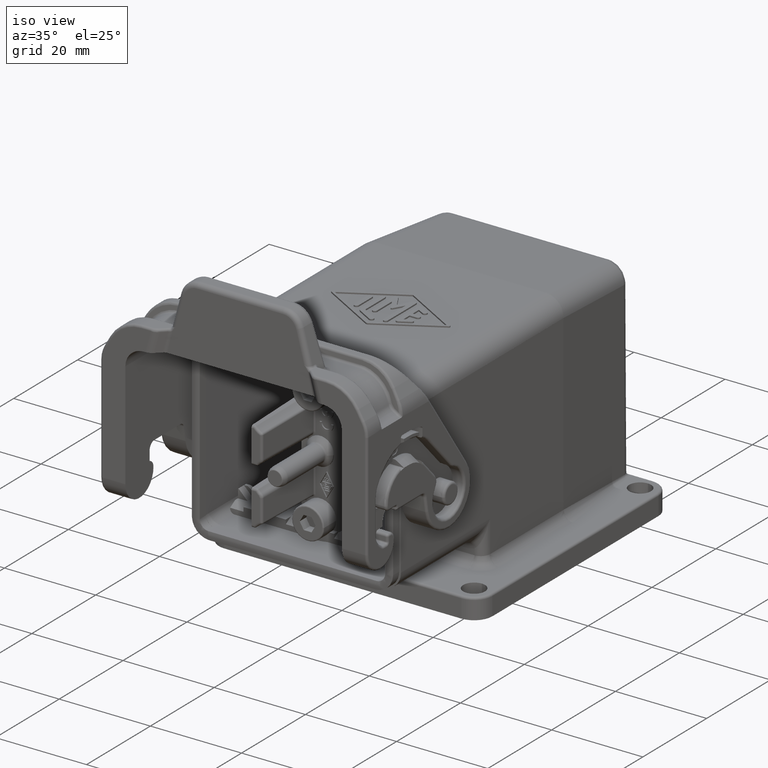
[diagram: clean part render]
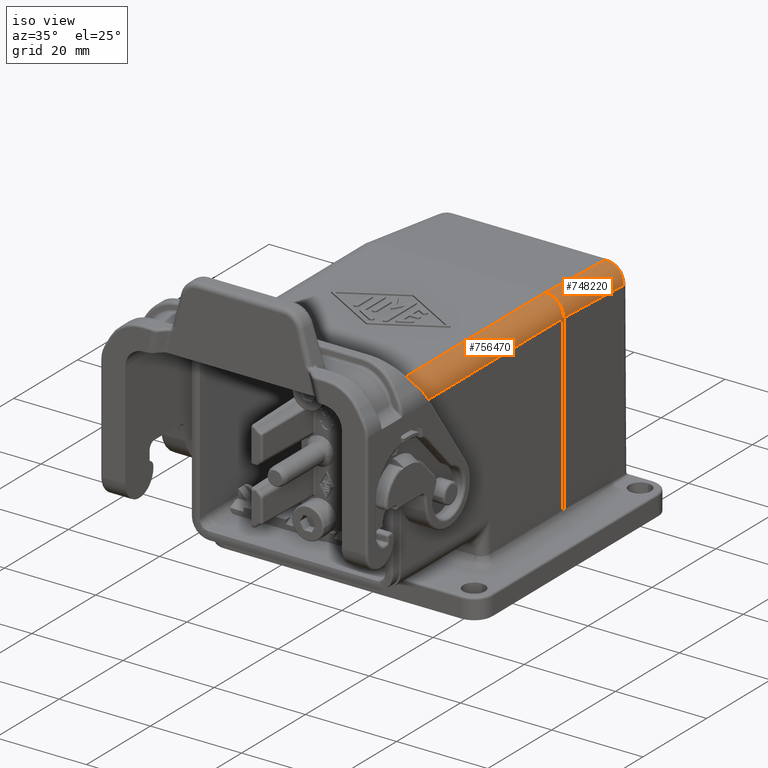
[diagram: same view with one multi-face feature highlighted, each face labeled with its STEP entity id]
A machine part, iso view. The highlighted faces form ONE feature: a constant-radius fillet chain: 2 tangent blend faces with common blend radius 4 mm. The faces share edges in the B-rep.
Their STEP definitions:
[1] entity #756470 (Cylinder):
#101020=CARTESIAN_POINT('',(55.8316053545882,74.4545149999975,105.9));
#101030=VERTEX_POINT('',#101020);
#101060=CARTESIAN_POINT('',(33.8311485820618,74.4545149999974,105.9));
#101070=DIRECTION('',(-1.,-5.55111512312578E-17,0.));
#101080=VECTOR('',#101070,1.);
#101090=LINE('',#101060,#101080);
#101100=CARTESIAN_POINT('',(106.731605541377,74.4545149999975,105.9));
#101110=VERTEX_POINT('',#101100);
#101120=EDGE_CURVE('',#101110,#101030,#101090,.T.);
#110940=CARTESIAN_POINT('',(55.8313127625493,74.4688253890988,
105.899974401514));
#110950=VERTEX_POINT('',#110940);
#110980=CARTESIAN_POINT('',(10.1113961435428,74.4545149999974,101.9));
#110990=DIRECTION('',(0.0871557427476582,9.6762312326757E-18,
-0.996194698091746));
#111000=DIRECTION('',(-0.996194698091746,-5.48766342722908E-17,
-0.0871557427476582));
#111010=AXIS2_PLACEMENT_3D('',#110980,#110990,#111000);
#111020=ELLIPSE('',#111010,45.8948529826794,4.);
#111030=EDGE_CURVE('',#110950,#101030,#111020,.T.);
#122560=CARTESIAN_POINT('',(106.731605541377,74.4545149999975,101.9));
#122570=DIRECTION('',(1.,5.55111512312578E-17,0.));
#122580=DIRECTION('',(-5.55111512312578E-17,1.,-6.16297582203915E-33));
#122590=AXIS2_PLACEMENT_3D('',#122560,#122570,#122580);
#122600=CIRCLE('',#122590,4.);
#122610=CARTESIAN_POINT('',(106.731605541377,78.4545149999974,101.9));
#122620=VERTEX_POINT('',#122610);
#122630=EDGE_CURVE('',#122620,#101110,#122600,.T.);
#746990=CARTESIAN_POINT('',(33.8311485820618,72.987681084249,
99.9599300898387));
#747000=DIRECTION('',(0.994030621840892,0.0658784203548369,
0.0869664106087028));
#747010=DIRECTION('',(-0.0871557427476581,-9.6762312326757E-18,
0.996194698091746));
#747020=AXIS2_PLACEMENT_3D('',#746990,#747000,#747010);
#747030=CYLINDRICAL_SURFACE('',#747020,4.);
#747090=CARTESIAN_POINT('',(55.831489050349,78.4545072920462,
101.907852614245));
#747100=VERTEX_POINT('',#747090);
#747130=CARTESIAN_POINT('',(33.8311485820618,74.4545149999974,101.9));
#747140=DIRECTION('',(-1.,-5.55111512312578E-17,0.));
#747150=DIRECTION('',(-5.55111512312578E-17,1.,-6.16297582203915E-33));
#747160=AXIS2_PLACEMENT_3D('',#747130,#747140,#747150);
#747170=CYLINDRICAL_SURFACE('',#747160,4.);
#747180=CARTESIAN_POINT('',(55.8314890503353,78.4545072920457,
101.907852614244));
#747190=CARTESIAN_POINT('',(55.8295510393362,78.4543788522367,
101.97327773641));
#747200=CARTESIAN_POINT('',(55.8276081252263,78.452644283066,
102.038690738177));
#747210=CARTESIAN_POINT('',(55.8256765321517,78.4493109915183,
102.103973003426));
#747220=CARTESIAN_POINT('',(55.8237449364493,78.445977695436,
102.169255357486));
#747230=CARTESIAN_POINT('',(55.821824626997,78.441045749831,
102.23440613166));
#747240=CARTESIAN_POINT('',(55.8199286534693,78.4345340618537,
102.299309738499));
#747250=CARTESIAN_POINT('',(55.8180326750497,78.4280223570751,
102.364213512801));
#747260=CARTESIAN_POINT('',(55.8161610150871,78.4199310502056,
102.428869307754));
#747270=CARTESIAN_POINT('',(55.8143242156562,78.4102895762197,
102.493167347478));
#747280=CARTESIAN_POINT('',(55.8124871177286,78.4006465354058,
102.557475836222));
#747290=CARTESIAN_POINT('',(55.8106860972347,78.3894616832956,
102.621381950846));
#747300=CARTESIAN_POINT('',(55.8089261822129,78.3767487609977,
102.684909118351));
#747310=CARTESIAN_POINT('',(55.8071649053967,78.3640260016413,
102.748485442175));
#747320=CARTESIAN_POINT('',(55.8054388538809,78.3497277412044,
102.81189673576));
#747330=CARTESIAN_POINT('',(55.8037563291161,78.3338591858586,
102.875032659774));
#747340=CARTESIAN_POINT('',(55.8020738101642,78.3179906853354,
102.938168365666));
#747350=CARTESIAN_POINT('',(55.8004348312089,78.3005520051145,
103.001027914257));
#747360=CARTESIAN_POINT('',(55.7988467944662,78.2815600890331,
103.063497265355));
#747370=CARTESIAN_POINT('',(55.797258761205,78.2625682145872,
103.125966479503));
#747380=CARTESIAN_POINT('',(55.7957216852239,78.2420232974657,
103.188044685333));
#747390=CARTESIAN_POINT('',(55.7942420845349,78.2199543353478,
103.249617209359));
#747400=CARTESIAN_POINT('',(55.7927624853378,78.1978853954808,
103.311189671304));
#747410=CARTESIAN_POINT('',(55.7913403765799,78.1742926767366,
103.372255639141));
#747420=CARTESIAN_POINT('',(55.789981393235,78.1492169654784,
103.432702641177));
#747430=CARTESIAN_POINT('',(55.7886224097015,78.1241412507411,
103.4931496516));
#747440=CARTESIAN_POINT('',(55.7873265655306,78.0975828761408,
103.552976902271));
#747450=CARTESIAN_POINT('',(55.7860986126874,78.0695935971133,
103.612076732123));
#747460=CARTESIAN_POINT('',(55.7848706582575,78.041604281921,
103.671176638337));
#747470=CARTESIAN_POINT('',(55.7837106069334,78.0121844536131,
103.729548367086));
#747480=CARTESIAN_POINT('',(55.7826223354289,77.9813954681961,
103.787091455929));
#747490=CARTESIAN_POINT('',(55.7815340612094,77.9506064059637,
103.844634688336));
#747500=CARTESIAN_POINT('',(55.780517575646,77.9184486268731,
103.901348580359));
#747510=CARTESIAN_POINT('',(55.7795759026694,77.8849911567501,
103.957142031546));
#747520=CARTESIAN_POINT('',(55.7786341897322,77.8515322668327,
104.012937850373));
#747530=CARTESIAN_POINT('',(55.7777674342832,77.8167800797011,
104.067803475336));
#747540=CARTESIAN_POINT('',(55.7769774697125,77.7807916395085,
104.121684882571));
#747550=CARTESIAN_POINT('',(55.7761870567987,77.7447827741332,
104.175596870114));
#747560=CARTESIAN_POINT('',(55.7754701047512,77.7073794000549,
104.228757416811));
#747570=CARTESIAN_POINT('',(55.7748303277683,77.6686279930909,
104.281066497944));
#747580=CARTESIAN_POINT('',(55.774190553077,77.6298767249252,
104.333375391718));
#747590=CARTESIAN_POINT('',(55.7736279648901,77.5897778292238,
104.384832133245));
#747600=CARTESIAN_POINT('',(55.7731457371696,77.5483901482988,
104.43533756465));
#747610=CARTESIAN_POINT('',(55.7726635105593,77.5070025626537,
104.485842879785));
#747620=CARTESIAN_POINT('',(55.7722616530359,77.4643266795104,
104.535396205374));
#747630=CARTESIAN_POINT('',(55.7719427200509,77.4204328477313,
104.583902256137));
#747640=CARTESIAN_POINT('',(55.7716237874185,77.3765390644775,
104.632408253275));
#747650=CARTESIAN_POINT('',(55.7713877847125,77.3314278895708,
104.679866321846));
#747660=CARTESIAN_POINT('',(55.7712365997327,77.2851798662601,
104.726187611414));
#747670=CARTESIAN_POINT('',(55.7710854147454,77.2389318406569,
104.772508903277));
#747680=CARTESIAN_POINT('',(55.7710190493632,77.1915475792231,
104.817692804204));
#747690=CARTESIAN_POINT('',(55.7710387042274,77.1431160800961,
104.861659033733));
#747700=CARTESIAN_POINT('',(55.7710583591152,77.0946845225204,
104.905625316322));
#747710=CARTESIAN_POINT('',(55.7711640324513,77.045206380791,
104.948373372023));
#747720=CARTESIAN_POINT('',(55.7713562489716,76.9947769460815,
104.989833206709));
#747730=CARTESIAN_POINT('',(55.7715484659552,76.9443473898466,
105.031293141304));
#747740=CARTESIAN_POINT('',(55.7718272205789,76.8929672189151,
105.071464369595));
#747750=CARTESIAN_POINT('',(55.7721924057579,76.8407354236768,
105.110288474517));
#747760=CARTESIAN_POINT('',(55.7725575923638,76.7885034243435,
105.149112731143));
#747770=CARTESIAN_POINT('',(55.773009199873,76.735420533249,
105.186589429334));
#747780=CARTESIAN_POINT('',(55.7735465707145,76.6815862592267,
105.222672660124));
#747790=CARTESIAN_POINT('',(55.7740839705348,76.6277490820826,
105.258757836775));
#747800=CARTESIAN_POINT('',(55.774709638513,76.5729098728808,
105.293617338527));
#747810=CARTESIAN_POINT('',(55.7754248279232,76.5171492382345,
105.327176680484));
#747820=CARTESIAN_POINT('',(55.7761400147001,76.4613888088956,
105.360735898877));
#747830=CARTESIAN_POINT('',(55.7769447186407,76.4047075860722,
105.392994477466));
#747840=CARTESIAN_POINT('',(55.7778396075436,76.3471973791073,
105.423883285781));
#747850=CARTESIAN_POINT('',(55.7787344943039,76.2896873098306,
105.454772020145));
#747860=CARTESIAN_POINT('',(55.7797195574387,76.2313489628974,
105.484290541749));
#747870=CARTESIAN_POINT('',(55.7807948524044,76.1722834180673,
105.512377563584));
#747880=CARTESIAN_POINT('',(55.7818701460875,76.1132179436938,
105.540464551915));
#747890=CARTESIAN_POINT('',(55.7830356587531,76.0534260330813,
105.567119647659));
#747900=CARTESIAN_POINT('',(55.7842908403837,75.9930158567242,
105.592291309452));
#747910=CARTESIAN_POINT('',(55.7855460219679,75.9326056825984,
105.617462970314));
#747920=CARTESIAN_POINT('',(55.786890855586,75.8715780406747,
105.641150863801));
#747930=CARTESIAN_POINT('',(55.7883242262253,75.8100457839105,
105.663314535601));
#747940=CARTESIAN_POINT('',(55.7897575984658,75.7485134584092,
105.68547823216));
#747950=CARTESIAN_POINT('',(55.7912794869577,75.6864773332243,
105.706117440916));
#747960=CARTESIAN_POINT('',(55.7928882869796,75.6240523096731,
105.725203586906));
#747970=CARTESIAN_POINT('',(55.7944970907225,75.5616271417406,
105.74428977704));
#747980=CARTESIAN_POINT('',(55.7961927816994,75.4988138877261,
105.761822712057));
#747990=CARTESIAN_POINT('',(55.7979733783462,75.4357266316719,
105.777785931929));
#748000=CARTESIAN_POINT('',(55.7997539813886,75.3726391490166,
105.79374920914));
#748010=CARTESIAN_POINT('',(55.8016194626733,75.3092784517396,
105.8081426577));
#748020=CARTESIAN_POINT('',(55.8035676186814,75.2457547039274,
105.820961582434));
#748030=CARTESIAN_POINT('',(55.8055147669505,75.1822638155811,
105.833773876215));
#748040=CARTESIAN_POINT('',(55.8075530613391,75.1183299754229,
105.845070205164));
#748050=CARTESIAN_POINT('',(55.8096832194892,75.0540319162058,
105.854817248266));
#748060=CARTESIAN_POINT('',(55.8118133061875,74.989736013741,
105.864563964423));
#748070=CARTESIAN_POINT('',(55.8140349734413,74.9250848840159,
105.872759647323));
#748080=CARTESIAN_POINT('',(55.8163478195425,74.8601890980415,
105.879375393976));
#748090=CARTESIAN_POINT('',(55.818660659909,74.7952934729777,
105.885991124224));
#748100=CARTESIAN_POINT('',(55.8210646479002,74.7301540048334,
105.891026777362));
#748110=CARTESIAN_POINT('',(55.823559083426,74.6648869897058,
105.894464122501));
#748120=CARTESIAN_POINT('',(55.8260535157599,74.5996200580933,
105.897901463242));
#748130=CARTESIAN_POINT('',(55.8286383581468,74.5342264254726,
105.899740421447));
#748140=CARTESIAN_POINT('',(55.8313127625495,74.4688253890988,
105.899974401514));
#748150=B_SPLINE_CURVE_WITH_KNOTS('',3,(#747180,#747190,#747200,#747210,
#747220,#747230,#747240,#747250,#747260,#747270,#747280,#747290,#747300,
#747310,#747320,#747330,#747340,#747350,#747360,#747370,#747380,#747390,
#747400,#747410,#747420,#747430,#747440,#747450,#747460,#747470,#747480,
#747490,#747500,#747510,#747520,#747530,#747540,#747550,#747560,#747570,
#747580,#747590,#747600,#747610,#747620,#747630,#747640,#747650,#747660,
#747670,#747680,#747690,#747700,#747710,#747720,#747730,#747740,#747750,
#747760,#747770,#747780,#747790,#747800,#747810,#747820,#747830,#747840,
#747850,#747860,#747870,#747880,#747890,#747900,#747910,#747920,#747930,
#747940,#747950,#747960,#747970,#747980,#747990,#748000,#748010,#748020,
#748030,#748040,#748050,#748060,#748070,#748080,#748090,#748100,#748110,
#748120,#748130,#748140),.UNSPECIFIED.,.F.,.F.,(4,3,3,3,3,3,3,3,3,3,3,3,
3,3,3,3,3,3,3,3,3,3,3,3,3,3,3,3,3,3,3,3,4),(0.,0.196294963243588,
0.392293710599518,0.587761277238945,0.782508588271178,0.977497632615233,
1.17316530546648,1.36928978607743,1.56563119168688,1.76194156453872,
1.95797433790779,2.15349388349975,2.34829160887497,2.54321551033879,
2.73883550785454,2.93493167316349,3.13126493333856,3.32758717628498,
3.52365077881641,3.71921816326471,3.91407201891611,4.10893525978864,
4.30450947468537,4.50057727231635,4.69690109438861,4.89323338907283,
5.08932615695777,5.28494047343651,5.47985659255888,5.67466096129762,
5.87018634243913,6.06622276692243,6.2625346831099),.UNSPECIFIED.);
#748160=SURFACE_CURVE('',#748150,(#747030,#747170),.CURVE_3D.);
#748170=EDGE_CURVE('',#747100,#110950,#748160,.T.);
#756130=CARTESIAN_POINT('',(55.8316053545881,78.4545149999974,101.9));
#756140=VERTEX_POINT('',#756130);
#756170=CARTESIAN_POINT('',(-4.52385650905737,74.4545149999974,101.9));
#756180=DIRECTION('',(0.0661289668497435,-0.997811084195493,
6.1494855868595E-33));
#756190=DIRECTION('',(-0.997811084195493,-0.0661289668497435,
4.07551223831398E-34));
#756200=AXIS2_PLACEMENT_3D('',#756170,#756180,#756190);
#756210=ELLIPSE('',#756200,60.4878647066829,4.);
#756220=EDGE_CURVE('',#756140,#747100,#756210,.T.);
#756340=ORIENTED_EDGE('',*,*,#101120,.F.);
#756350=ORIENTED_EDGE('',*,*,#111030,.T.);
#756360=ORIENTED_EDGE('',*,*,#748170,.T.);
#756370=ORIENTED_EDGE('',*,*,#756220,.T.);
#756380=CARTESIAN_POINT('',(33.8311485820618,78.4545149999974,101.9));
#756390=DIRECTION('',(-1.,-5.55111512312578E-17,0.));
#756400=VECTOR('',#756390,1.);
#756410=LINE('',#756380,#756400);
#756420=EDGE_CURVE('',#122620,#756140,#756410,.T.);
#756430=ORIENTED_EDGE('',*,*,#756420,.T.);
#756440=ORIENTED_EDGE('',*,*,#122630,.F.);
#756450=EDGE_LOOP('',(#756440,#756430,#756370,#756360,#756350,#756340));
#756460=FACE_OUTER_BOUND('',#756450,.T.);
#756470=ADVANCED_FACE('',(#756460),#747170,.T.);
[2] entity #748220 (Cylinder):
#108970=CARTESIAN_POINT('',(35.0080662628595,73.088784819002,
104.078176394985));
#108980=VERTEX_POINT('',#108970);
#110900=CARTESIAN_POINT('',(33.4825256110712,72.987681084249,
103.944708882206));
#110910=DIRECTION('',(0.994030621840892,0.0658784203548369,
0.0869664106087028));
#110920=VECTOR('',#110910,1.);
#110930=LINE('',#110900,#110920);
#110940=CARTESIAN_POINT('',(55.8313127625493,74.4688253890988,
105.899974401514));
#110950=VERTEX_POINT('',#110940);
#110960=EDGE_CURVE('',#108980,#110950,#110930,.T.);
#746180=CARTESIAN_POINT('',(35.0326870779069,77.076086759407,
100.088193226735));
#746190=VERTEX_POINT('',#746180);
#746220=CARTESIAN_POINT('',(35.0326870779069,77.0760867594071,
100.088193226735));
#746230=CARTESIAN_POINT('',(35.0058124583862,77.0743056699288,
100.434949747381));
#746240=CARTESIAN_POINT('',(34.9568623969998,76.9983283688812,
101.128463528076));
#746250=CARTESIAN_POINT('',(34.9002984239485,76.667291700437,
102.14044520022));
#746260=CARTESIAN_POINT('',(34.8754416180564,76.025894546948,
103.025115229551));
#746270=CARTESIAN_POINT('',(34.8879427347577,75.1413149564375,
103.666996760947));
#746280=CARTESIAN_POINT('',(34.9360040360153,74.1292171523363,
103.999020570117));
#746290=CARTESIAN_POINT('',(34.9819371238834,73.4355953499106,
104.075890391537));
#746300=CARTESIAN_POINT('',(35.0080662628595,73.088784819002,
104.078176394985));
#746310=B_SPLINE_CURVE_WITH_KNOTS('',6,(#746220,#746230,#746240,#746250,
#746260,#746270,#746280,#746290,#746300),.UNSPECIFIED.,.F.,.F.,(7,1,1,7)
,(0.,0.333333333333333,0.666666666666667,1.),.UNSPECIFIED.);
#746320=EDGE_CURVE('',#746190,#108980,#746310,.T.);
#746990=CARTESIAN_POINT('',(33.8311485820618,72.987681084249,
99.9599300898387));
#747000=DIRECTION('',(0.994030621840892,0.0658784203548369,
0.0869664106087028));
#747010=DIRECTION('',(-0.0871557427476581,-9.6762312326757E-18,
0.996194698091746));
#747020=AXIS2_PLACEMENT_3D('',#746990,#747000,#747010);
#747030=CYLINDRICAL_SURFACE('',#747020,4.);
#747040=ORIENTED_EDGE('',*,*,#746320,.T.);
#747050=CARTESIAN_POINT('',(33.5666327146628,76.978925421031,
99.9599300898387));
#747060=DIRECTION('',(0.994030621840892,0.0658784203548369,
0.0869664106087028));
#747070=VECTOR('',#747060,1.);
#747080=LINE('',#747050,#747070);
#747090=CARTESIAN_POINT('',(55.831489050349,78.4545072920462,
101.907852614245));
#747100=VERTEX_POINT('',#747090);
#747110=EDGE_CURVE('',#746190,#747100,#747080,.T.);
#747120=ORIENTED_EDGE('',*,*,#747110,.F.);
#747130=CARTESIAN_POINT('',(33.8311485820618,74.4545149999974,101.9));
#747140=DIRECTION('',(-1.,-5.55111512312578E-17,0.));
#747150=DIRECTION('',(-5.55111512312578E-17,1.,-6.16297582203915E-33));
#747160=AXIS2_PLACEMENT_3D('',#747130,#747140,#747150);
#747170=CYLINDRICAL_SURFACE('',#747160,4.);
#747180=CARTESIAN_POINT('',(55.8314890503353,78.4545072920457,
101.907852614244));
#747190=CARTESIAN_POINT('',(55.8295510393362,78.4543788522367,
101.97327773641));
#747200=CARTESIAN_POINT('',(55.8276081252263,78.452644283066,
102.038690738177));
#747210=CARTESIAN_POINT('',(55.8256765321517,78.4493109915183,
102.103973003426));
#747220=CARTESIAN_POINT('',(55.8237449364493,78.445977695436,
102.169255357486));
#747230=CARTESIAN_POINT('',(55.821824626997,78.441045749831,
102.23440613166));
#747240=CARTESIAN_POINT('',(55.8199286534693,78.4345340618537,
102.299309738499));
#747250=CARTESIAN_POINT('',(55.8180326750497,78.4280223570751,
102.364213512801));
#747260=CARTESIAN_POINT('',(55.8161610150871,78.4199310502056,
102.428869307754));
#747270=CARTESIAN_POINT('',(55.8143242156562,78.4102895762197,
102.493167347478));
#747280=CARTESIAN_POINT('',(55.8124871177286,78.4006465354058,
102.557475836222));
#747290=CARTESIAN_POINT('',(55.8106860972347,78.3894616832956,
102.621381950846));
#747300=CARTESIAN_POINT('',(55.8089261822129,78.3767487609977,
102.684909118351));
#747310=CARTESIAN_POINT('',(55.8071649053967,78.3640260016413,
102.748485442175));
#747320=CARTESIAN_POINT('',(55.8054388538809,78.3497277412044,
102.81189673576));
#747330=CARTESIAN_POINT('',(55.8037563291161,78.3338591858586,
102.875032659774));
#747340=CARTESIAN_POINT('',(55.8020738101642,78.3179906853354,
102.938168365666));
#747350=CARTESIAN_POINT('',(55.8004348312089,78.3005520051145,
103.001027914257));
#747360=CARTESIAN_POINT('',(55.7988467944662,78.2815600890331,
103.063497265355));
#747370=CARTESIAN_POINT('',(55.797258761205,78.2625682145872,
103.125966479503));
#747380=CARTESIAN_POINT('',(55.7957216852239,78.2420232974657,
103.188044685333));
#747390=CARTESIAN_POINT('',(55.7942420845349,78.2199543353478,
103.249617209359));
#747400=CARTESIAN_POINT('',(55.7927624853378,78.1978853954808,
103.311189671304));
#747410=CARTESIAN_POINT('',(55.7913403765799,78.1742926767366,
103.372255639141));
#747420=CARTESIAN_POINT('',(55.789981393235,78.1492169654784,
103.432702641177));
#747430=CARTESIAN_POINT('',(55.7886224097015,78.1241412507411,
103.4931496516));
#747440=CARTESIAN_POINT('',(55.7873265655306,78.0975828761408,
103.552976902271));
#747450=CARTESIAN_POINT('',(55.7860986126874,78.0695935971133,
103.612076732123));
#747460=CARTESIAN_POINT('',(55.7848706582575,78.041604281921,
103.671176638337));
#747470=CARTESIAN_POINT('',(55.7837106069334,78.0121844536131,
103.729548367086));
#747480=CARTESIAN_POINT('',(55.7826223354289,77.9813954681961,
103.787091455929));
#747490=CARTESIAN_POINT('',(55.7815340612094,77.9506064059637,
103.844634688336));
#747500=CARTESIAN_POINT('',(55.780517575646,77.9184486268731,
103.901348580359));
#747510=CARTESIAN_POINT('',(55.7795759026694,77.8849911567501,
103.957142031546));
#747520=CARTESIAN_POINT('',(55.7786341897322,77.8515322668327,
104.012937850373));
#747530=CARTESIAN_POINT('',(55.7777674342832,77.8167800797011,
104.067803475336));
#747540=CARTESIAN_POINT('',(55.7769774697125,77.7807916395085,
104.121684882571));
#747550=CARTESIAN_POINT('',(55.7761870567987,77.7447827741332,
104.175596870114));
#747560=CARTESIAN_POINT('',(55.7754701047512,77.7073794000549,
104.228757416811));
#747570=CARTESIAN_POINT('',(55.7748303277683,77.6686279930909,
104.281066497944));
#747580=CARTESIAN_POINT('',(55.774190553077,77.6298767249252,
104.333375391718));
#747590=CARTESIAN_POINT('',(55.7736279648901,77.5897778292238,
104.384832133245));
#747600=CARTESIAN_POINT('',(55.7731457371696,77.5483901482988,
104.43533756465));
#747610=CARTESIAN_POINT('',(55.7726635105593,77.5070025626537,
104.485842879785));
#747620=CARTESIAN_POINT('',(55.7722616530359,77.4643266795104,
104.535396205374));
#747630=CARTESIAN_POINT('',(55.7719427200509,77.4204328477313,
104.583902256137));
#747640=CARTESIAN_POINT('',(55.7716237874185,77.3765390644775,
104.632408253275));
#747650=CARTESIAN_POINT('',(55.7713877847125,77.3314278895708,
104.679866321846));
#747660=CARTESIAN_POINT('',(55.7712365997327,77.2851798662601,
104.726187611414));
#747670=CARTESIAN_POINT('',(55.7710854147454,77.2389318406569,
104.772508903277));
#747680=CARTESIAN_POINT('',(55.7710190493632,77.1915475792231,
104.817692804204));
#747690=CARTESIAN_POINT('',(55.7710387042274,77.1431160800961,
104.861659033733));
#747700=CARTESIAN_POINT('',(55.7710583591152,77.0946845225204,
104.905625316322));
#747710=CARTESIAN_POINT('',(55.7711640324513,77.045206380791,
104.948373372023));
#747720=CARTESIAN_POINT('',(55.7713562489716,76.9947769460815,
104.989833206709));
#747730=CARTESIAN_POINT('',(55.7715484659552,76.9443473898466,
105.031293141304));
#747740=CARTESIAN_POINT('',(55.7718272205789,76.8929672189151,
105.071464369595));
#747750=CARTESIAN_POINT('',(55.7721924057579,76.8407354236768,
105.110288474517));
#747760=CARTESIAN_POINT('',(55.7725575923638,76.7885034243435,
105.149112731143));
#747770=CARTESIAN_POINT('',(55.773009199873,76.735420533249,
105.186589429334));
#747780=CARTESIAN_POINT('',(55.7735465707145,76.6815862592267,
105.222672660124));
#747790=CARTESIAN_POINT('',(55.7740839705348,76.6277490820826,
105.258757836775));
#747800=CARTESIAN_POINT('',(55.774709638513,76.5729098728808,
105.293617338527));
#747810=CARTESIAN_POINT('',(55.7754248279232,76.5171492382345,
105.327176680484));
#747820=CARTESIAN_POINT('',(55.7761400147001,76.4613888088956,
105.360735898877));
#747830=CARTESIAN_POINT('',(55.7769447186407,76.4047075860722,
105.392994477466));
#747840=CARTESIAN_POINT('',(55.7778396075436,76.3471973791073,
105.423883285781));
#747850=CARTESIAN_POINT('',(55.7787344943039,76.2896873098306,
105.454772020145));
#747860=CARTESIAN_POINT('',(55.7797195574387,76.2313489628974,
105.484290541749));
#747870=CARTESIAN_POINT('',(55.7807948524044,76.1722834180673,
105.512377563584));
#747880=CARTESIAN_POINT('',(55.7818701460875,76.1132179436938,
105.540464551915));
#747890=CARTESIAN_POINT('',(55.7830356587531,76.0534260330813,
105.567119647659));
#747900=CARTESIAN_POINT('',(55.7842908403837,75.9930158567242,
105.592291309452));
#747910=CARTESIAN_POINT('',(55.7855460219679,75.9326056825984,
105.617462970314));
#747920=CARTESIAN_POINT('',(55.786890855586,75.8715780406747,
105.641150863801));
#747930=CARTESIAN_POINT('',(55.7883242262253,75.8100457839105,
105.663314535601));
#747940=CARTESIAN_POINT('',(55.7897575984658,75.7485134584092,
105.68547823216));
#747950=CARTESIAN_POINT('',(55.7912794869577,75.6864773332243,
105.706117440916));
#747960=CARTESIAN_POINT('',(55.7928882869796,75.6240523096731,
105.725203586906));
#747970=CARTESIAN_POINT('',(55.7944970907225,75.5616271417406,
105.74428977704));
#747980=CARTESIAN_POINT('',(55.7961927816994,75.4988138877261,
105.761822712057));
#747990=CARTESIAN_POINT('',(55.7979733783462,75.4357266316719,
105.777785931929));
#748000=CARTESIAN_POINT('',(55.7997539813886,75.3726391490166,
105.79374920914));
#748010=CARTESIAN_POINT('',(55.8016194626733,75.3092784517396,
105.8081426577));
#748020=CARTESIAN_POINT('',(55.8035676186814,75.2457547039274,
105.820961582434));
#748030=CARTESIAN_POINT('',(55.8055147669505,75.1822638155811,
105.833773876215));
#748040=CARTESIAN_POINT('',(55.8075530613391,75.1183299754229,
105.845070205164));
#748050=CARTESIAN_POINT('',(55.8096832194892,75.0540319162058,
105.854817248266));
#748060=CARTESIAN_POINT('',(55.8118133061875,74.989736013741,
105.864563964423));
#748070=CARTESIAN_POINT('',(55.8140349734413,74.9250848840159,
105.872759647323));
#748080=CARTESIAN_POINT('',(55.8163478195425,74.8601890980415,
105.879375393976));
#748090=CARTESIAN_POINT('',(55.818660659909,74.7952934729777,
105.885991124224));
#748100=CARTESIAN_POINT('',(55.8210646479002,74.7301540048334,
105.891026777362));
#748110=CARTESIAN_POINT('',(55.823559083426,74.6648869897058,
105.894464122501));
#748120=CARTESIAN_POINT('',(55.8260535157599,74.5996200580933,
105.897901463242));
#748130=CARTESIAN_POINT('',(55.8286383581468,74.5342264254726,
105.899740421447));
#748140=CARTESIAN_POINT('',(55.8313127625495,74.4688253890988,
105.899974401514));
#748150=B_SPLINE_CURVE_WITH_KNOTS('',3,(#747180,#747190,#747200,#747210,
#747220,#747230,#747240,#747250,#747260,#747270,#747280,#747290,#747300,
#747310,#747320,#747330,#747340,#747350,#747360,#747370,#747380,#747390,
#747400,#747410,#747420,#747430,#747440,#747450,#747460,#747470,#747480,
#747490,#747500,#747510,#747520,#747530,#747540,#747550,#747560,#747570,
#747580,#747590,#747600,#747610,#747620,#747630,#747640,#747650,#747660,
#747670,#747680,#747690,#747700,#747710,#747720,#747730,#747740,#747750,
#747760,#747770,#747780,#747790,#747800,#747810,#747820,#747830,#747840,
#747850,#747860,#747870,#747880,#747890,#747900,#747910,#747920,#747930,
#747940,#747950,#747960,#747970,#747980,#747990,#748000,#748010,#748020,
#748030,#748040,#748050,#748060,#748070,#748080,#748090,#748100,#748110,
#748120,#748130,#748140),.UNSPECIFIED.,.F.,.F.,(4,3,3,3,3,3,3,3,3,3,3,3,
3,3,3,3,3,3,3,3,3,3,3,3,3,3,3,3,3,3,3,3,4),(0.,0.196294963243588,
0.392293710599518,0.587761277238945,0.782508588271178,0.977497632615233,
1.17316530546648,1.36928978607743,1.56563119168688,1.76194156453872,
1.95797433790779,2.15349388349975,2.34829160887497,2.54321551033879,
2.73883550785454,2.93493167316349,3.13126493333856,3.32758717628498,
3.52365077881641,3.71921816326471,3.91407201891611,4.10893525978864,
4.30450947468537,4.50057727231635,4.69690109438861,4.89323338907283,
5.08932615695777,5.28494047343651,5.47985659255888,5.67466096129762,
5.87018634243913,6.06622276692243,6.2625346831099),.UNSPECIFIED.);
#748160=SURFACE_CURVE('',#748150,(#747030,#747170),.CURVE_3D.);
#748170=EDGE_CURVE('',#747100,#110950,#748160,.T.);
#748180=ORIENTED_EDGE('',*,*,#748170,.F.);
#748190=ORIENTED_EDGE('',*,*,#110960,.T.);
#748200=EDGE_LOOP('',(#748190,#748180,#747120,#747040));
#748210=FACE_OUTER_BOUND('',#748200,.T.);
#748220=ADVANCED_FACE('',(#748210),#747030,.T.);